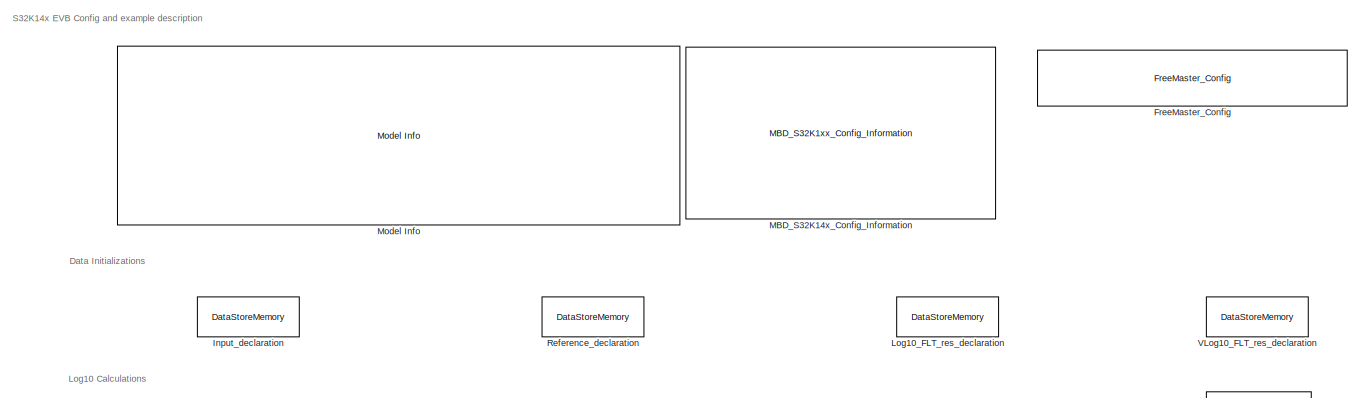
[diagram: root canvas - part 1/2, full width, top band]
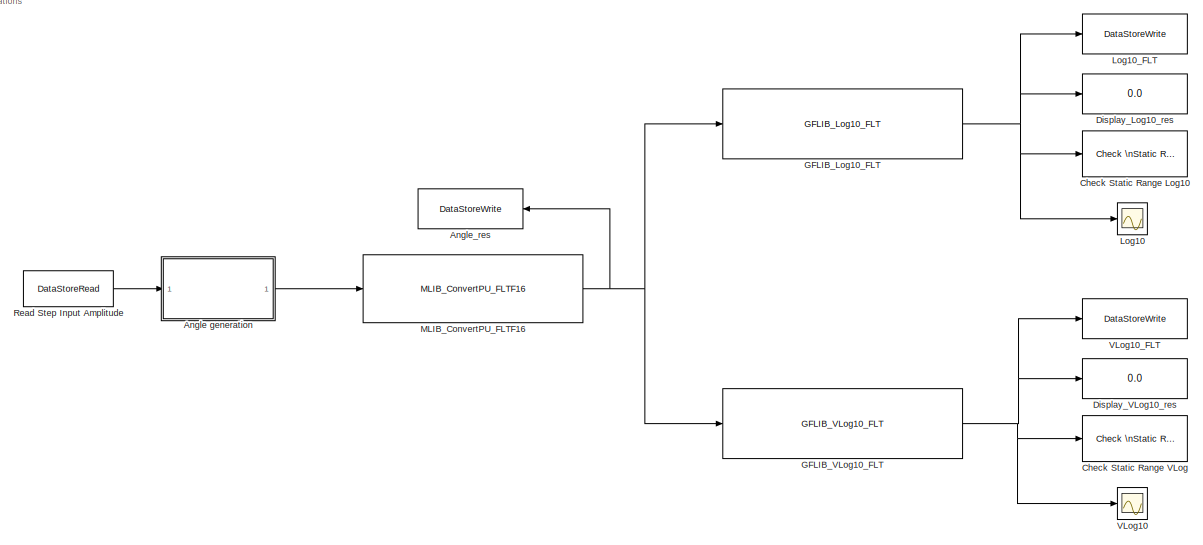
[diagram: root canvas - part 2/2, full width, bottom band]
MODEL ammclib_gflib_log_s32k14x
KIND model
CONFIG InitFcn = mbd_s32k_consistency_checks(bdroot(gcs));
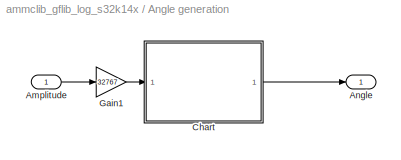
BLOCK [SubSystem] Angle generation
  Ports = [1, 1]
  RequestExecContextInheritance = off
  SID = 774
  Variant = off
BLOCK [Inport] Angle generation/Amplitude 
  IconDisplay = Port number
  SID = 775
BLOCK [Outport] Angle generation/Angle
  IconDisplay = Port number
  SID = 776
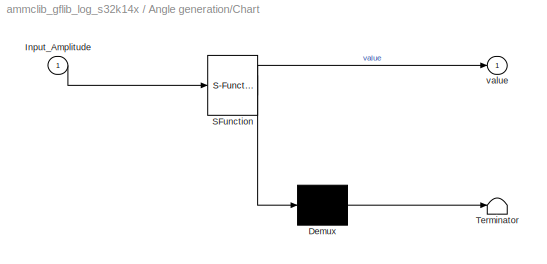
BLOCK [SubSystem] Angle generation/Chart
  ErrorFcn = Stateflow.Translate.translate
  PermitHierarchicalResolution = ExplicitOnly
  Ports = [1, 1]
  RequestExecContextInheritance = off
  SFBlockType = Chart
  SID = 708
  TreatAsAtomicUnit = on
  Variant = off
BLOCK [Demux] Angle generation/Chart/ Demux 
  Outputs = 1
  Ports = [1, 1]
  SID = 708::32
BLOCK [S-Function] Angle generation/Chart/ SFunction 
  EnableBusSupport = off
  FunctionName = sf_sfun
  PortCounts = [1 2]
  Ports = [1, 2]
  SFcnIsStateOwnerBlock = off
  SFunctionDeploymentMode = off
  SID = 708::31
  Tag = Stateflow S-Function ammclib_gflib_log_s32k14x 5
BLOCK [Terminator] Angle generation/Chart/ Terminator 
  SID = 708::33
BLOCK [Inport] Angle generation/Chart/Input_Amplitude
  IconDisplay = Port number
  SID = 708::30
BLOCK [Outport] Angle generation/Chart/value
  IconDisplay = Port number
  SID = 708::5
BLOCK [Gain] Angle generation/Gain1
  Gain = 32767
  OutDataTypeStr = Inherit: Inherit via back propagation
  ParamDataTypeStr = Inherit: Inherit via internal rule
  SID = 747
  SaturateOnIntegerOverflow = off
BLOCK [DataStoreWrite] Angle_res
  DataStoreName = Reference
  Ports = [1]
  SID = 707
BLOCK [Reference] Check Static Range Log10  REF=simulink/Model\nVerification/Check \nStatic Range
  Description = -1000 <= u <= 0
  Ports = [1]
  SID = 984
  SourceBlock = simulink/Model\nVerification/Check \nStatic Range
  SourceProductBaseCode = SL
  SourceProductName = Simulink
  SourceType = Checks_SRange
  enabled = on
  export = off
  icon = graphic
  max = 0
  max_included = on
  min = -1000
  min_included = on
  stopWhenAssertionFail = on
BLOCK [Reference] Check Static Range VLog  REF=simulink/Model\nVerification/Check \nStatic Range
  Description = -1000 <= u <= 0
  Ports = [1]
  SID = 989
  SourceBlock = simulink/Model\nVerification/Check \nStatic Range
  SourceProductBaseCode = SL
  SourceProductName = Simulink
  SourceType = Checks_SRange
  enabled = on
  export = off
  icon = graphic
  max = 0
  max_included = on
  min = -1000
  min_included = on
  stopWhenAssertionFail = on
BLOCK [Display] Display_Log10_res
  Decimation = 1
  Format = long
  Ports = [1]
  SID = 985
BLOCK [Display] Display_VLog10_res
  Decimation = 1
  Format = long
  Ports = [1]
  SID = 990
BLOCK [Reference] FreeMaster_Config  REF=mbd_s32k1xx_ec_toolbox/Utility Blocks/FreeMaster_Config
  Ports = []
  SID = 564
  SourceBlock = mbd_s32k1xx_ec_toolbox/Utility Blocks/FreeMaster_Config
  SourceType = fm_s32k_config
  baudrate = 115200
  comm_buffer_size = 255
  comm_buffer_size_auto = on
  comm_rqueue_size = 32
  comm_rqueue_size_default = on
  interface = LPUART1
  isr_prio = 1
  max_rec_vars = 8
  max_scope_vars = 8
  mode = Short Interrupt
  rec_buff_size = 1024
  rec_timebase = 0
  rec_timebase_unit = milliseconds
  rxd = PTC6: [LPUART1_RX | Receive]
  show_adv_opts = on
  txd = PTC7: [LPUART1_TX | Transmit]
  use_recorder = on
  use_scope = on
BLOCK [Reference] GFLIB_Log10_FLT  REF=ammclib_bam_s32k14x/GFLIB/bam_flt/GFLIB_Log10_FLT  (lib defined in mdl_f341c9dd7fd9)
  Ports = [1, 1]
  SID = 981
  SourceBlock = ammclib_bam_s32k14x/GFLIB/bam_flt/GFLIB_Log10_FLT
  SourceType = GFLIB_Log10_FLT
BLOCK [Reference] GFLIB_VLog10_FLT  REF=ammclib_bam_s32k14x/GFLIB/bam_flt/GFLIB_VLog10_FLT  (lib defined in mdl_f341c9dd7fd9)
  N = 1
  Ports = [1, 1]
  SID = 987
  SourceBlock = ammclib_bam_s32k14x/GFLIB/bam_flt/GFLIB_VLog10_FLT
  SourceType = GFLIB_VLog10_FLT
BLOCK [DataStoreMemory] Input_declaration
  DataStoreName = Input
  InitialValue = 1
  OutDataTypeStr = single
  OutMax = 1
  OutMin = -1
  Priority = 1
  SID = 582
  ShowAdditionalParam = off
  WriteAfterReadMsg = warning
  WriteAfterWriteMsg = warning
BLOCK [Scope] Log10
  NumInputPorts = 1
  Ports = [1]
  SID = 986
  ScopeSpecificationString = Simulink.scopes.TimeScopeBlockCfg('CurrentConfiguration', extmgr.ConfigurationSet(extmgr.Configuration('Core','General UI',true),extmgr.Configuration('Core','Source UI',true),extmgr.Configuration('Sources','WiredSimulink',true),extmgr.Configuration('Visuals','Time Domain',true,'SerializedDisplays',{struct('MinYLimReal','-4.54312','MaxYLimReal','0.50473','YLabelReal','','MinYLimMag','0.00000','MaxY...<+1335ch>
BLOCK [DataStoreWrite] Log10_FLT
  DataStoreName = Log10_FLT
  Ports = [1]
  SID = 786
BLOCK [DataStoreMemory] Log10_FLT_res_declaration
  DataStoreName = Log10_FLT
  OutDataTypeStr = single
  Priority = 2
  ReadBeforeWriteMsg = warning
  SID = 630
  ShowAdditionalParam = off
  WriteAfterReadMsg = warning
  WriteAfterWriteMsg = warning
BLOCK [Reference] MBD_S32K14x_Config_Information  REF=mbd_s32k1xx_ec_toolbox/MBD_S32K1xx_Config_Information
  ADC_PcrCheckEnDis = on
  AMMCLIB_PcrCheckEnDis = on
  CMP_PcrCheckEnDis = on
  CSEc_PcrCheckEnDis = on
  ConfigParams_PcrCheckEnDis = on
  FM_PcrCheckEnDis = on
  FTM_Dual_Edge_Inputs_PcrCheckEnDis = on
  FTM_Hall_Sensor_Inputs_PcrCheckEnDis = on
  FTM_Input_Edge_Inputs_PcrCheckEnDis = on
  FTM_PWM_PcrCheckEnDis = on
  FTM_Quadrature_Inputs_PcrCheckEnDis = on
  FlexCAN_PcrCheckEnDis = on
  FlexIO_PcrCheckEnDis = on
  GPIO_InputPcrCheckEnDis = on
  GPIO_OutputPcrCheckEnDis = on
  LIN_PcrCheckEnDis = on
  LPI2C_PcrCheckEnDis = on
  LPSPI_PcrCheckEnDis = on
  LPTMR_PcrCheckEnDis = on
  LPUART_PcrCheckEnDis = on
  ModelRef_PcrCheckEnDis = on
  PDB0_PcrCheckEnDis = on
  PIT_PcrCheckEnDis = on
  Ports = []
  Priority = 0
  Profile_PcrCheckEnDis = on
  RTC_PcrCheckEnDis = on
  SBC_PcrCheckEnDis = on
  SID = 1
  SourceBlock = mbd_s32k1xx_ec_toolbox/MBD_S32K1xx_Config_Information
  SourceType = MBDTBX_EC_S32K
  WDOG_PcrCheckEnDis = on
  config_params = []
  disp_str = Target : S32K142-16KB_SRAM\nPackage : 100-pin\nSystem clock : 80 MHz\nXTAL clock : External 8 MHz\nCompiler : GCC\nTarget Type : FLASH\nDownload Code after build : (OpenSDA: E)\nStep Tick Interrupt Priority : 15
  ds_import_enable = on
  eDMA_PcrCheckEnDis = on
  gcc_target_assemble_opts = -mcpu=cortex-m4 -mthumb -mfloat-abi=hard -mfpu=fpv4-sp-d16 -g
  gcc_target_compile_opts = -mcpu=cortex-m4 -mthumb -mfloat-abi=hard -mfpu=fpv4-sp-d16 -O1 -g -gstrict-dwarf
  gcc_target_default_lcf = on
  gcc_target_link_opts = -mcpu=cortex-m4 -mthumb -mfloat-abi=hard -mfpu=fpv4-sp-d16
  gcc_target_user_lcf = S32K146_128_flash.ld
  ghs_target_assemble_opts = -cpu=cortexm4f -fpu=vfpv4_d16
  ghs_target_compile_opts = -cpu=cortexm4f -thumb -DARM_MATH_CM4 -fpu=vfpv4_d16 -fsingle -Ogeneral -Wundef -Wimplicit-int -Wshadow -Wtrigraphs --no_commons --gnu_asm -gnu99 -gdwarf-2 -G
  ghs_target_default_lcf = off
  ghs_target_link_opts = -cpu=cortexm4f -thumb -fpu=vfpv4_d16
  ghs_target_user_lcf = S32K146_128_flash.ld
  iar_target_assemble_opts = --cpu Cortex-M4F --thumb --fpu VFPv4_sp
  iar_target_compile_opts = --cpu=Cortex-M4F --thumb --fpu=VFPv4_sp -Ol -e --debug --dlib_config normal
  iar_target_default_lcf = off
  iar_target_link_opts = --no_exceptions --vfe --inline
  iar_target_user_lcf = S32K146_128_flash.icf
  mbdt_ver = 0
  mcu_steptick_prio = 15
  mcu_steptick_timer = LPIT Channel 0
  mcu_system_clock_freq = 80
  mcu_target_name = S32K146
  mcu_target_package = 144-LQFP
  mcu_target_sram_size = 128KB
  mcu_xtal_freq = External 8
  pil_download_enable = off
  pil_download_rate = 57600
  pil_opensda_drive = Custom
  pil_opensda_drive_custom = D
  pil_uart_instance = 1
  pil_uart_rx = PTC6: [LPUART1_RX | Receive]
  pil_uart_tx = PTC7: [LPUART1_TX | Transmit]
  rbl_com_port = Custom
  rbl_com_port_custom = COM1
  rbl_download_enable = on
  rbl_download_interface = OpenSDA
  rbl_restart_request = off
  rbl_start_delay = 5000000
  target_compiler = GCC
  target_memory = FLASH
BLOCK [Reference] MLIB_ConvertPU_FLTF16  REF=ammclib_bam_s32k14x/MLIB/bam_flt/MLIB_ConvertPU_FLTF16  (lib defined in mdl_f341c9dd7fd9)
  Ports = [1, 1]
  SID = 752
  SourceBlock = ammclib_bam_s32k14x/MLIB/bam_flt/MLIB_ConvertPU_FLTF16
  SourceType = MLIB_ConvertPU_FLT
BLOCK [Reference] Model Info  REF=simulink/Model-Wide\nUtilities/Model Info
  DisplayStringWithTags = Model Name: %<ModelName>\n\nDescription: %<Description>
  Frame = off
  HorizontalTextAlignment = Left
  LeftAlignmentValue = 0.02
  MaskDisplayString = Model Name: ammclib_gflib_log_s32k14x\\n\\nDescription: This model tests the AMMCLIB GFLIB LOG10 blocks\\n\\nValidation:\\n- Run the model in Simulation and check the results\\n- Open Freemaster (ammclib_gflib_log_s32k14x.pmp) and compare the HW results against the Simulated ones\\nNOTE: Due to memory constraints used for VLog10 this model can be run only on S32K146/148
  Ports = []
  SID = 524
  SourceBlock = simulink/Model-Wide\nUtilities/Model Info
  SourceProductBaseCode = SL
  SourceProductName = Simulink
  SourceType = CMBlock
BLOCK [DataStoreRead] Read Step Input Amplitude
  DataStoreName = Input
  Ports = [0, 1]
  SID = 652
BLOCK [DataStoreMemory] Reference_declaration
  DataStoreName = Reference
  OutDataTypeStr = single
  OutMax = 1
  OutMin = -1
  Priority = 1
  SID = 706
  ShowAdditionalParam = off
  WriteAfterReadMsg = warning
  WriteAfterWriteMsg = warning
BLOCK [Scope] VLog10
  NumInputPorts = 1
  Ports = [1]
  SID = 991
  ScopeSpecificationString = Simulink.scopes.TimeScopeBlockCfg('CurrentConfiguration', extmgr.ConfigurationSet(extmgr.Configuration('Core','General UI',true),extmgr.Configuration('Core','Source UI',true),extmgr.Configuration('Sources','WiredSimulink',true,'DataLoggingVariableName','ScopeData1'),extmgr.Configuration('Visuals','Time Domain',true,'SerializedDisplays',{struct('MinYLimReal','-4.54312','MaxYLimReal','0.50473','YLab...<+1375ch>
BLOCK [DataStoreWrite] VLog10_FLT
  DataStoreName = VLog10_FLT
  Ports = [1]
  SID = 992
BLOCK [DataStoreMemory] VLog10_FLT_res_declaration
  DataStoreName = VLog10_FLT
  OutDataTypeStr = single
  Priority = 2
  ReadBeforeWriteMsg = warning
  SID = 827
  ShowAdditionalParam = off
  WriteAfterReadMsg = warning
  WriteAfterWriteMsg = warning
ANNOTATION (root): Data Initializations
ANNOTATION (root): Log10 Calculations
ANNOTATION (root): S32K14x EVB Config and example description
LINE Angle generation/Amplitude :1 -> Angle generation/Gain1:1
LINE Angle generation/Chart/ Demux :1 -> Angle generation/Chart/ Terminator :1
LINE Angle generation/Chart/ SFunction :1 -> Angle generation/Chart/ Demux :1
LINE Angle generation/Chart/ SFunction :2 -> Angle generation/Chart/value:1
LINE Angle generation/Chart/Input_Amplitude:1 -> Angle generation/Chart/ SFunction :1
LINE Angle generation/Chart:1 -> Angle generation/Angle:1
LINE Angle generation/Gain1:1 -> Angle generation/Chart:1
LINE Angle generation:1 -> MLIB_ConvertPU_FLTF16:1
NET GFLIB_Log10_FLT:1 -> Check Static Range Log10:1, Display_Log10_res:1, Log10:1, Log10_FLT:1
NET GFLIB_VLog10_FLT:1 -> Check Static Range VLog:1, Display_VLog10_res:1, VLog10:1, VLog10_FLT:1
NET MLIB_ConvertPU_FLTF16:1 -> Angle_res:1, GFLIB_Log10_FLT:1, GFLIB_VLog10_FLT:1
LINE Read Step Input Amplitude:1 -> Angle generation:1
note: NET lines group one-source signal fan-out (src -> all destinations, sorted); 1:1 wires keep LINE
CHART Angle generation/Chart states=1 transitions=2
  STATE_LABEL 'A\\ndu:\\n cntr=cntr+25;\\n value=cntr;\\nex:\\n cntr = -Input_Amplitude;'
